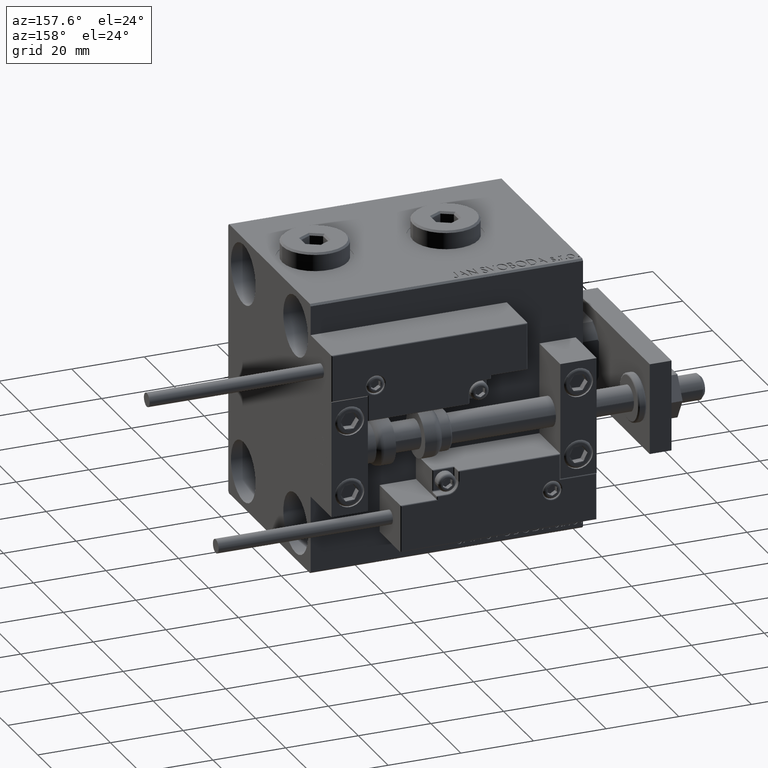
[diagram: clean part render]
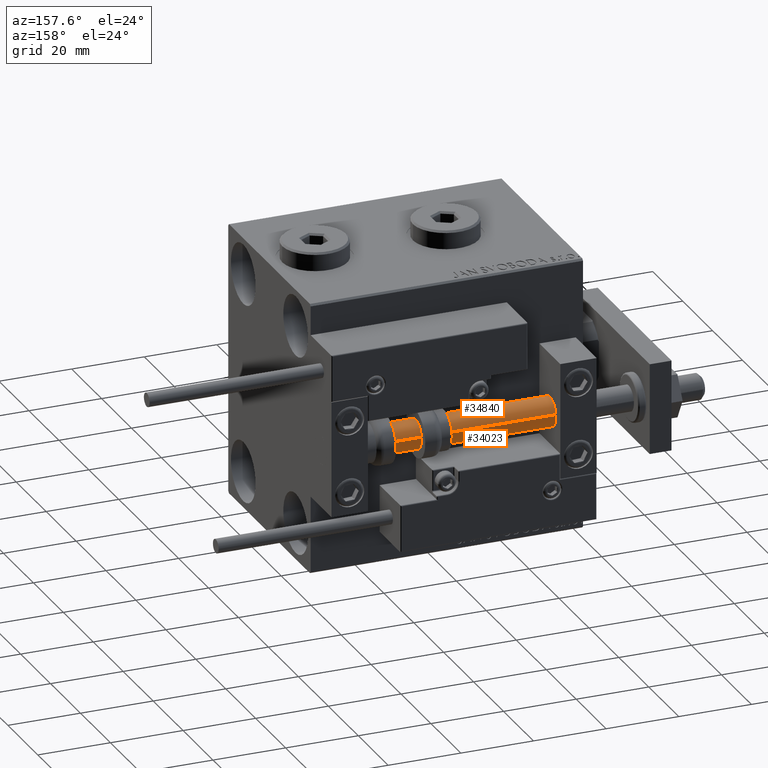
[diagram: same view with one multi-face feature highlighted, each face labeled with its STEP entity id]
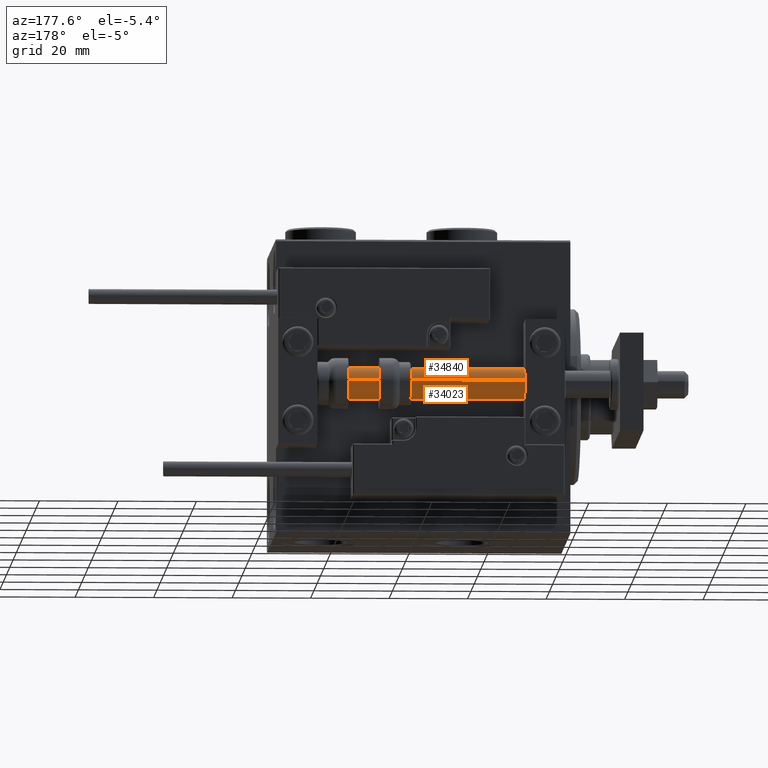
[diagram: same view with one multi-face feature highlighted, each face labeled with its STEP entity id]
A machine part, auxiliary view. The highlighted faces form ONE feature: a constant-radius fillet chain: 2 tangent blend faces with common blend radius 4 mm. The faces share edges in the B-rep.
A second angle (auxiliary view) of the same feature is appended — it is thin or edge-on in the first view.
Their STEP definitions:
[1] entity #34840 (Cylinder):
#803 = DIRECTION ( 'NONE',  ( 0.000000000000000000, 0.000000000000000000, 1.000000000000000000 ) ) ;
#3817 = ORIENTED_EDGE ( 'NONE', *, *, #51139, .T. ) ;
#4968 = DIRECTION ( 'NONE',  ( -0.000000000000000000, -0.000000000000000000, -1.000000000000000000 ) ) ;
#7811 = VERTEX_POINT ( 'NONE', #47079 ) ;
#10118 = EDGE_LOOP ( 'NONE', ( #19469, #3817, #43723, #32445 ) ) ;
#12985 = DIRECTION ( 'NONE',  ( -0.000000000000000000, -0.000000000000000000, -1.000000000000000000 ) ) ;
#17219 = CARTESIAN_POINT ( 'NONE',  ( 0.000000000000000000, 0.000000000000000000, 75.00000000000000000 ) ) ;
#17634 = VERTEX_POINT ( 'NONE', #40733 ) ;
#19196 = VERTEX_POINT ( 'NONE', #28047 ) ;
#19469 = ORIENTED_EDGE ( 'NONE', *, *, #30718, .F. ) ;
#20378 = AXIS2_PLACEMENT_3D ( 'NONE', #17219, #4968, #21138 ) ;
#20567 = CARTESIAN_POINT ( 'NONE',  ( 4.000000000000000000, 4.898587196589412829E-16, 75.00000000000000000 ) ) ;
#21138 = DIRECTION ( 'NONE',  ( -1.000000000000000000, 0.000000000000000000, 0.000000000000000000 ) ) ;
#22029 = AXIS2_PLACEMENT_3D ( 'NONE', #36762, #803, #32587 ) ;
#24721 = LINE ( 'NONE', #20567, #35803 ) ;
#26225 = VECTOR ( 'NONE', #33428, 1000.000000000000000 ) ;
#28047 = CARTESIAN_POINT ( 'NONE',  ( 4.000000000000000000, 4.898587196589412829E-16, 75.00000000000000000 ) ) ;
#28462 = DIRECTION ( 'NONE',  ( -0.000000000000000000, -0.000000000000000000, 1.000000000000000000 ) ) ;
#28490 = EDGE_CURVE ( 'NONE', #30604, #17634, #28592, .T. ) ;
#28592 = CIRCLE ( 'NONE', #34410, 4.000000000000000000 ) ;
#28936 = FACE_OUTER_BOUND ( 'NONE', #10118, .T. ) ;
#29935 = CARTESIAN_POINT ( 'NONE',  ( 0.000000000000000000, 0.000000000000000000, 2.000000000000029310 ) ) ;
#30604 = VERTEX_POINT ( 'NONE', #51111 ) ;
#30718 = EDGE_CURVE ( 'NONE', #19196, #7811, #33659, .T. ) ;
#32445 = ORIENTED_EDGE ( 'NONE', *, *, #34719, .F. ) ;
#32587 = DIRECTION ( 'NONE',  ( 1.000000000000000000, 0.000000000000000000, 0.000000000000000000 ) ) ;
#33428 = DIRECTION ( 'NONE',  ( -0.000000000000000000, -0.000000000000000000, -1.000000000000000000 ) ) ;
#33659 = CIRCLE ( 'NONE', #22029, 4.000000000000000000 ) ;
#34410 = AXIS2_PLACEMENT_3D ( 'NONE', #29935, #28462, #41412 ) ;
#34719 = EDGE_CURVE ( 'NONE', #7811, #17634, #50371, .T. ) ;
#34840 = ADVANCED_FACE ( 'NONE', ( #28936 ), #36516, .T. ) ;
#35803 = VECTOR ( 'NONE', #12985, 1000.000000000000000 ) ;
#36516 = CYLINDRICAL_SURFACE ( 'NONE', #20378, 4.000000000000000000 ) ;
#36762 = CARTESIAN_POINT ( 'NONE',  ( 0.000000000000000000, 0.000000000000000000, 75.00000000000000000 ) ) ;
#40733 = CARTESIAN_POINT ( 'NONE',  ( -4.000000000000000000, 0.000000000000000000, 2.000000000000029310 ) ) ;
#41412 = DIRECTION ( 'NONE',  ( 1.000000000000000000, 0.000000000000000000, 0.000000000000000000 ) ) ;
#43723 = ORIENTED_EDGE ( 'NONE', *, *, #28490, .T. ) ;
#47079 = CARTESIAN_POINT ( 'NONE',  ( -4.000000000000000000, 0.000000000000000000, 75.00000000000000000 ) ) ;
#49847 = CARTESIAN_POINT ( 'NONE',  ( -4.000000000000000000, 0.000000000000000000, 75.00000000000000000 ) ) ;
#50371 = LINE ( 'NONE', #49847, #26225 ) ;
#51111 = CARTESIAN_POINT ( 'NONE',  ( 4.000000000000000000, 4.898587196589412829E-16, 2.000000000000029310 ) ) ;
#51139 = EDGE_CURVE ( 'NONE', #19196, #30604, #24721, .T. ) ;
[2] entity #34023 (Cylinder):
#1544 = CARTESIAN_POINT ( 'NONE',  ( 0.000000000000000000, 0.000000000000000000, 2.000000000000029310 ) ) ;
#4455 = DIRECTION ( 'NONE',  ( -1.000000000000000000, 0.000000000000000000, 0.000000000000000000 ) ) ;
#4700 = CYLINDRICAL_SURFACE ( 'NONE', #11988, 4.000000000000000000 ) ;
#6160 = AXIS2_PLACEMENT_3D ( 'NONE', #36588, #9203, #44917 ) ;
#7811 = VERTEX_POINT ( 'NONE', #47079 ) ;
#8090 = DIRECTION ( 'NONE',  ( -0.000000000000000000, -0.000000000000000000, -1.000000000000000000 ) ) ;
#9203 = DIRECTION ( 'NONE',  ( 0.000000000000000000, 0.000000000000000000, 1.000000000000000000 ) ) ;
#10345 = ORIENTED_EDGE ( 'NONE', *, *, #51139, .F. ) ;
#11988 = AXIS2_PLACEMENT_3D ( 'NONE', #28928, #8090, #4455 ) ;
#12782 = EDGE_CURVE ( 'NONE', #17634, #30604, #47477, .T. ) ;
#12985 = DIRECTION ( 'NONE',  ( -0.000000000000000000, -0.000000000000000000, -1.000000000000000000 ) ) ;
#13262 = DIRECTION ( 'NONE',  ( 1.000000000000000000, 0.000000000000000000, 0.000000000000000000 ) ) ;
#16749 = ORIENTED_EDGE ( 'NONE', *, *, #12782, .T. ) ;
#17634 = VERTEX_POINT ( 'NONE', #40733 ) ;
#19196 = VERTEX_POINT ( 'NONE', #28047 ) ;
#20401 = EDGE_CURVE ( 'NONE', #7811, #19196, #41012, .T. ) ;
#20567 = CARTESIAN_POINT ( 'NONE',  ( 4.000000000000000000, 4.898587196589412829E-16, 75.00000000000000000 ) ) ;
#21224 = ORIENTED_EDGE ( 'NONE', *, *, #34719, .T. ) ;
#24721 = LINE ( 'NONE', #20567, #35803 ) ;
#25019 = AXIS2_PLACEMENT_3D ( 'NONE', #1544, #32309, #13262 ) ;
#26225 = VECTOR ( 'NONE', #33428, 1000.000000000000000 ) ;
#28047 = CARTESIAN_POINT ( 'NONE',  ( 4.000000000000000000, 4.898587196589412829E-16, 75.00000000000000000 ) ) ;
#28928 = CARTESIAN_POINT ( 'NONE',  ( 0.000000000000000000, 0.000000000000000000, 75.00000000000000000 ) ) ;
#30604 = VERTEX_POINT ( 'NONE', #51111 ) ;
#32309 = DIRECTION ( 'NONE',  ( -0.000000000000000000, -0.000000000000000000, 1.000000000000000000 ) ) ;
#33428 = DIRECTION ( 'NONE',  ( -0.000000000000000000, -0.000000000000000000, -1.000000000000000000 ) ) ;
#34023 = ADVANCED_FACE ( 'NONE', ( #35991 ), #4700, .T. ) ;
#34719 = EDGE_CURVE ( 'NONE', #7811, #17634, #50371, .T. ) ;
#35803 = VECTOR ( 'NONE', #12985, 1000.000000000000000 ) ;
#35991 = FACE_OUTER_BOUND ( 'NONE', #36168, .T. ) ;
#36168 = EDGE_LOOP ( 'NONE', ( #10345, #45015, #21224, #16749 ) ) ;
#36588 = CARTESIAN_POINT ( 'NONE',  ( 0.000000000000000000, 0.000000000000000000, 75.00000000000000000 ) ) ;
#40733 = CARTESIAN_POINT ( 'NONE',  ( -4.000000000000000000, 0.000000000000000000, 2.000000000000029310 ) ) ;
#41012 = CIRCLE ( 'NONE', #6160, 4.000000000000000000 ) ;
#44917 = DIRECTION ( 'NONE',  ( 1.000000000000000000, 0.000000000000000000, 0.000000000000000000 ) ) ;
#45015 = ORIENTED_EDGE ( 'NONE', *, *, #20401, .F. ) ;
#47079 = CARTESIAN_POINT ( 'NONE',  ( -4.000000000000000000, 0.000000000000000000, 75.00000000000000000 ) ) ;
#47477 = CIRCLE ( 'NONE', #25019, 4.000000000000000000 ) ;
#49847 = CARTESIAN_POINT ( 'NONE',  ( -4.000000000000000000, 0.000000000000000000, 75.00000000000000000 ) ) ;
#50371 = LINE ( 'NONE', #49847, #26225 ) ;
#51111 = CARTESIAN_POINT ( 'NONE',  ( 4.000000000000000000, 4.898587196589412829E-16, 2.000000000000029310 ) ) ;
#51139 = EDGE_CURVE ( 'NONE', #19196, #30604, #24721, .T. ) ;